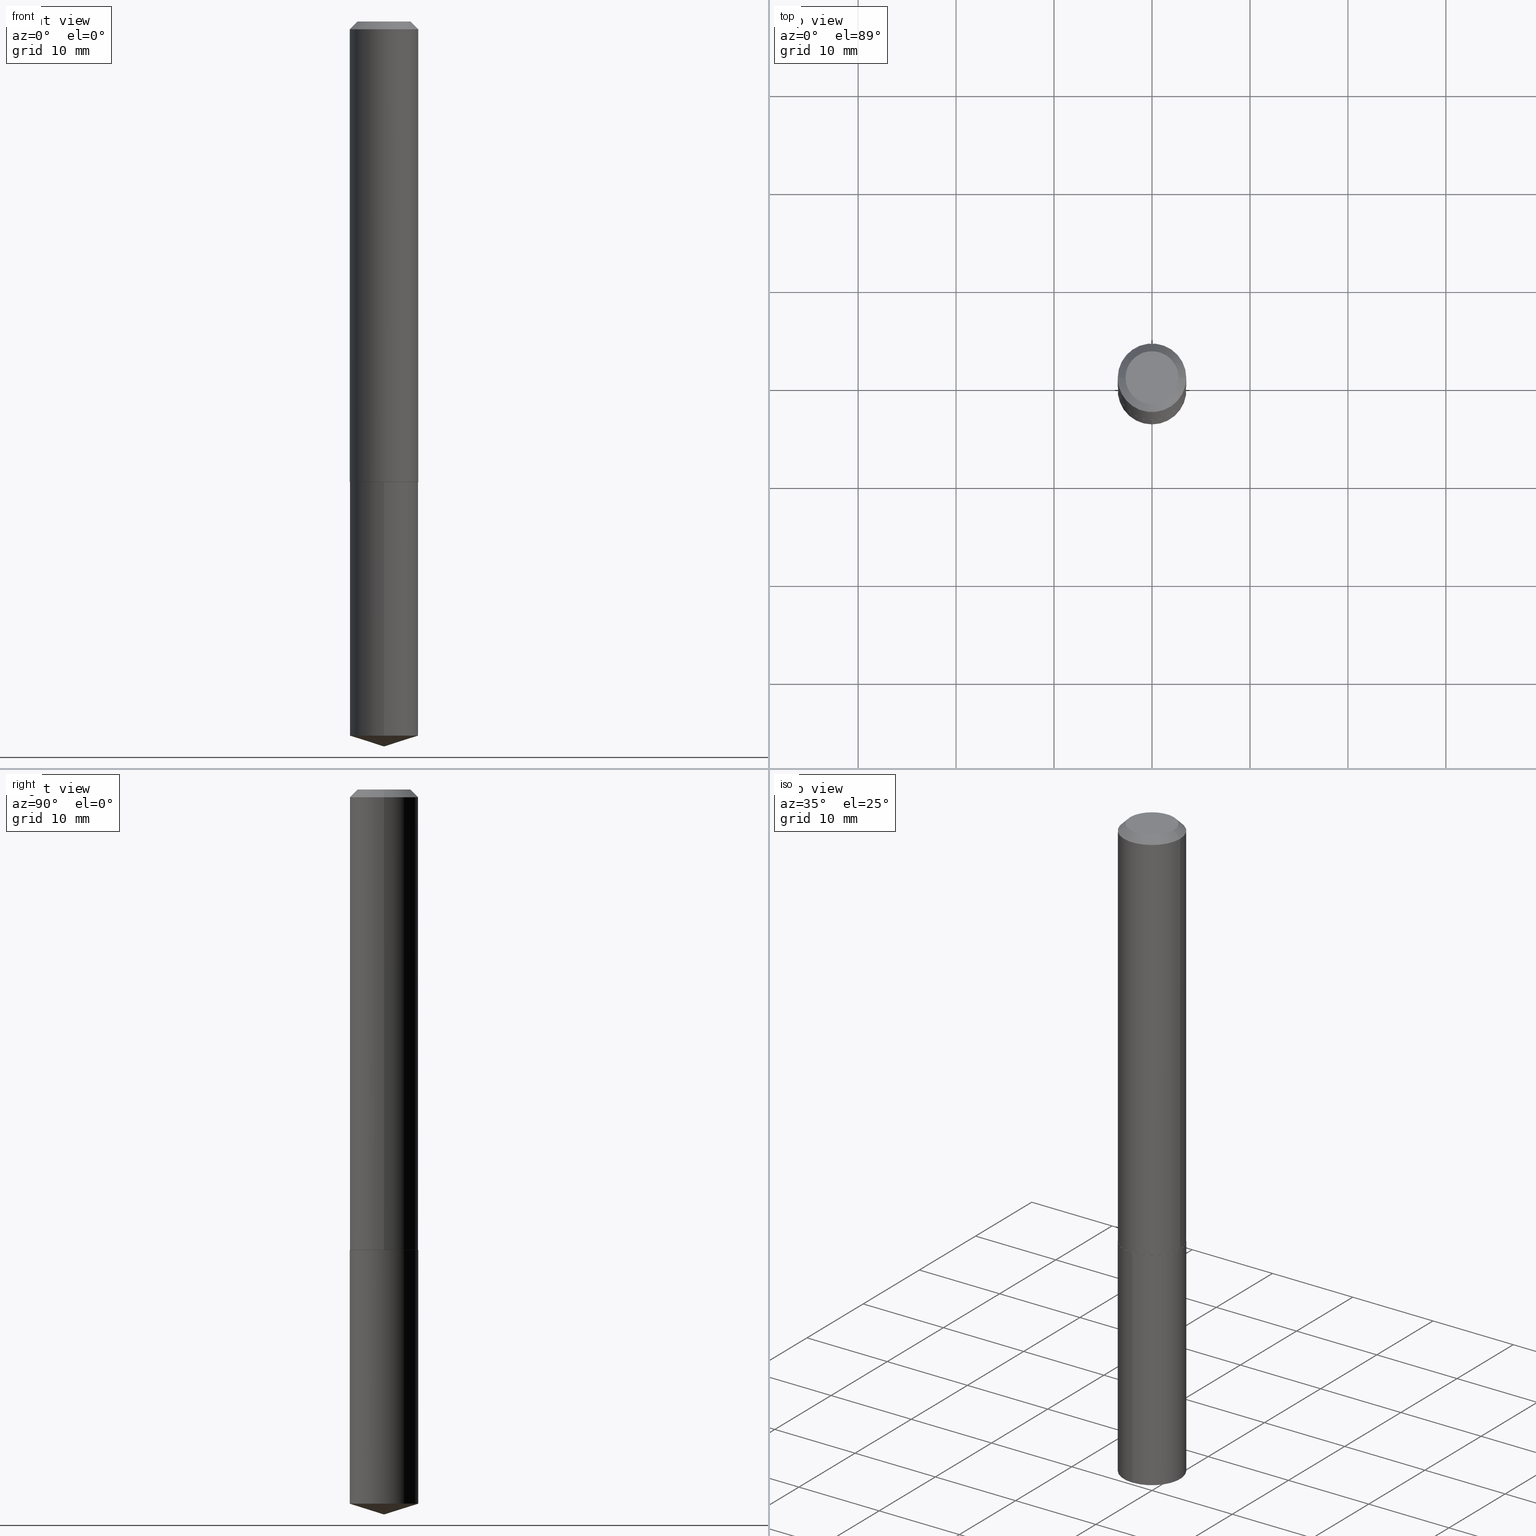
[diagram: canonical four-view strip — front | top / right | iso, engineering-drawing reading convention]
A machine part, canonical four-view strip (front | top / right | iso — engineering-drawing reading convention). The complete STEP part file that produces these views, byte-faithful:
ISO-10303-21;
HEADER;
FILE_DESCRIPTION (( 'STEP AP203' ),
    '1' );
FILE_NAME ('62143.STEP',
    '2024-04-23T06:39:51',
    ( '' ),
    ( '' ),
    'SwSTEP 2.0',
    'SolidWorks 2023',
    '' );
FILE_SCHEMA (( 'CONFIG_CONTROL_DESIGN' ));
ENDSEC;

DATA;
#1 = LINE ( 'NONE', #130, #357 ) ;
#2 = APPROVAL ( #200, 'UNSPECIFIED' ) ;
#3 = EDGE_CURVE ( 'NONE', #278, #332, #58, .T. ) ;
#4 = APPLICATION_PROTOCOL_DEFINITION ( 'international standard', 'config_control_design', 1994, #105 ) ;
#5 = FACE_OUTER_BOUND ( 'NONE', #305, .T. ) ;
#6 = CARTESIAN_POINT ( 'NONE',  ( -8.915002560210652443E-28, 1.272930333936979442E-13, 36.45667874015747856 ) ) ;
#7 = ADVANCED_FACE ( 'NONE', ( #372 ), #34, .F. ) ;
#8 = ORIENTED_EDGE ( 'NONE', *, *, #257, .T. ) ;
#9 = VECTOR ( 'NONE', #40, 39.37007874015748143 ) ;
#10 = DIRECTION ( 'NONE',  ( -2.445373653169523645E-29, 3.491617603377276597E-15, 1.000000000000000000 ) ) ;
#11 = DIRECTION ( 'NONE',  ( 6.776566513254266815E-15, 0.9537169507482301523, 0.3007057995042627385 ) ) ;
#12 = CC_DESIGN_DATE_AND_TIME_ASSIGNMENT ( #21, #45, ( #73 ) ) ;
#13 = VERTEX_POINT ( 'NONE', #101 ) ;
#14 = CARTESIAN_POINT ( 'NONE',  ( -0.1378000000000002279, -5.479763438848515411E-15, -1.849900000000000100 ) ) ;
#15 = DIRECTION ( 'NONE',  ( 1.000000000000000000, -6.982962677686269077E-15, 0.000000000000000000 ) ) ;
#16 = CARTESIAN_POINT ( 'NONE',  ( 4.525095478964976833E-29, -6.460637069395356787E-15, -1.850400000000000045 ) ) ;
#17 = DATE_AND_TIME ( #384, #360 ) ;
#18 = DIRECTION ( 'NONE',  ( -6.982962677686266711E-15, -1.000000000000000000, 3.500519750498647634E-15 ) ) ;
#19 = APPROVAL_DATE_TIME ( #80, #2 ) ;
#20 = CARTESIAN_POINT ( 'NONE',  ( -0.1378000000000001446, 9.791278898774190835E-16, -6.778292554371267040E-30 ) ) ;
#21 = DATE_AND_TIME ( #118, #238 ) ;
#22 = CONICAL_SURFACE ( 'NONE', #131, 0.1378000000000000058, 0.7853981633974449483 ) ;
#23 = DIMENSIONAL_EXPONENTS ( 1.000000000000000000, 0.000000000000000000, 0.000000000000000000, 0.000000000000000000, 0.000000000000000000, 0.000000000000000000, 0.000000000000000000 ) ;
#24 = EDGE_CURVE ( 'NONE', #277, #285, #135, .T. ) ;
#25 = CIRCLE ( 'NONE', #390, 0.1065500000000000197 ) ;
#26 = ORIENTED_EDGE ( 'NONE', *, *, #3, .T. ) ;
#27 = VERTEX_POINT ( 'NONE', #224 ) ;
#28 = CARTESIAN_POINT ( 'NONE',  ( 9.791278898774632598E-16, 0.1377999999999935665, -1.850400000000000489 ) ) ;
#29 = AXIS2_PLACEMENT_3D ( 'NONE', #70, #353, #175 ) ;
#30 = EDGE_CURVE ( 'NONE', #13, #308, #261, .T. ) ;
#31 = DIRECTION ( 'NONE',  ( -2.445468806185136597E-29, 3.491481338843145583E-15, 1.000000000000000000 ) ) ;
#32 = EDGE_LOOP ( 'NONE', ( #81, #274, #366, #388 ) ) ;
#33 = LINE ( 'NONE', #287, #60 ) ;
#34 = PLANE ( 'NONE',  #158 ) ;
#35 = CARTESIAN_POINT ( 'NONE',  ( -0.1378000000000000058, -2.304872170404972320E-15, -0.03125000000000020123 ) ) ;
#36 = ORIENTED_EDGE ( 'NONE', *, *, #299, .T. ) ;
#37 = CARTESIAN_POINT ( 'NONE',  ( 0.1378000000000000058, -1.054485415931766154E-15, -0.03125000000000020123 ) ) ;
#38 = CARTESIAN_POINT ( 'NONE',  ( 0.1065500000000000197, -8.927357387971616206E-16, 4.837354856689280991E-19 ) ) ;
#39 = CARTESIAN_POINT ( 'NONE',  ( -9.622522569851223147E-16, -0.1378000000000064729, -1.850399999999999379 ) ) ;
#40 = DIRECTION ( 'NONE',  ( -2.445468806185136877E-29, 3.491481338843145188E-15, 1.000000000000000000 ) ) ;
#41 = CC_DESIGN_DATE_AND_TIME_ASSIGNMENT ( #329, #297, ( #53 ) ) ;
#42 = PRODUCT_DEFINITION_SHAPE ( 'NONE', 'NONE',  #73 ) ;
#43 = AXIS2_PLACEMENT_3D ( 'NONE', #44, #378, #18 ) ;
#44 = CARTESIAN_POINT ( 'NONE',  ( -8.915002560210652443E-28, 1.272930333936979442E-13, 36.45667874015747856 ) ) ;
#45 = DATE_TIME_ROLE ( 'creation_date' ) ;
#46 = DIRECTION ( 'NONE',  ( 2.445468806185136597E-29, -3.491481338843145583E-15, -1.000000000000000000 ) ) ;
#47 = APPROVAL_ROLE ( '' ) ;
#48 = CIRCLE ( 'NONE', #255, 0.1378000000000002279 ) ;
#49 = ORIENTED_EDGE ( 'NONE', *, *, #338, .T. ) ;
#50 = ORIENTED_EDGE ( 'NONE', *, *, #162, .F. ) ;
#51 = ORIENTED_EDGE ( 'NONE', *, *, #94, .T. ) ;
#52 = AXIS2_PLACEMENT_3D ( 'NONE', #217, #56, #186 ) ;
#53 = SECURITY_CLASSIFICATION ( '', '', #77 ) ;
#54 = ORIENTED_EDGE ( 'NONE', *, *, #194, .F. ) ;
#55 = ORIENTED_EDGE ( 'NONE', *, *, #338, .F. ) ;
#56 = DIRECTION ( 'NONE',  ( -2.445468806185136597E-29, 3.491481338843145583E-15, 1.000000000000000000 ) ) ;
#57 =( CONVERSION_BASED_UNIT ( 'INCH', #340 ) LENGTH_UNIT ( ) NAMED_UNIT ( #23 ) );
#58 = LINE ( 'NONE', #163, #66 ) ;
#59 = CONICAL_SURFACE ( 'NONE', #228, 0.1378000000000000058, 0.7853981633974449483 ) ;
#60 = VECTOR ( 'NONE', #191, 39.37007874015748143 ) ;
#61 = DIRECTION ( 'NONE',  ( 1.000000000000000000, -6.982962677686265922E-15, 4.876176775795935232E-29 ) ) ;
#62 = CARTESIAN_POINT ( 'NONE',  ( 7.642090019328600035E-31, -1.091087918388489897E-16, -0.03125000000000020123 ) ) ;
#63 = DIRECTION ( 'NONE',  ( 0.7071067811863543939, -2.468850131080234027E-15, 0.7071067811867406405 ) ) ;
#64 =( LENGTH_UNIT ( ) NAMED_UNIT ( * ) SI_UNIT ( $, .METRE. ) );
#65 = CARTESIAN_POINT ( 'NONE',  ( 4.525095478964976833E-29, -6.460637069395356787E-15, -1.850400000000000045 ) ) ;
#66 = VECTOR ( 'NONE', #63, 39.37007874015748143 ) ;
#67 = CLOSED_SHELL ( 'NONE', ( #267, #205, #314, #136, #7 ) ) ;
#68 = AXIS2_PLACEMENT_3D ( 'NONE', #171, #290, #139 ) ;
#69 = CARTESIAN_POINT ( 'NONE',  ( -5.914800203170931988E-48, 8.444767105646539499E-34, 2.418677428316027436E-19 ) ) ;
#70 = CARTESIAN_POINT ( 'NONE',  ( 4.525095478964976833E-29, -6.460637069395356787E-15, -1.850400000000000045 ) ) ;
#71 = APPROVAL_DATE_TIME ( #17, #271 ) ;
#72 = DIRECTION ( 'NONE',  ( -2.445468806185136597E-29, 3.491481338843145583E-15, 1.000000000000000000 ) ) ;
#73 = PRODUCT_DEFINITION ( 'UNKNOWN', '', #117, #87 ) ;
#74 = DIRECTION ( 'NONE',  ( -6.982962677686265922E-15, -1.000000000000000000, 3.964946289788480896E-15 ) ) ;
#75 = EDGE_CURVE ( 'NONE', #385, #331, #367, .T. ) ;
#76 = CIRCLE ( 'NONE', #302, 0.1378000000000000058 ) ;
#77 = SECURITY_CLASSIFICATION_LEVEL ( 'unclassified' ) ;
#78 = LOCAL_TIME ( 2, 39, 51.00000000000000000, #178 ) ;
#79 = CARTESIAN_POINT ( 'NONE',  ( 0.000000000000000000, 0.000000000000000000, 0.000000000000000000 ) ) ;
#80 = DATE_AND_TIME ( #206, #78 ) ;
#81 = ORIENTED_EDGE ( 'NONE', *, *, #264, .T. ) ;
#82 = CALENDAR_DATE ( 2024, 23, 4 ) ;
#83 = EDGE_CURVE ( 'NONE', #13, #335, #126, .T. ) ;
#84 = CIRCLE ( 'NONE', #68, 0.1373000000000006160 ) ;
#85 = ORIENTED_EDGE ( 'NONE', *, *, #75, .T. ) ;
#86 = ORIENTED_EDGE ( 'NONE', *, *, #241, .T. ) ;
#87 = DESIGN_CONTEXT ( 'detailed design', #154, 'design' ) ;
#88 = EDGE_CURVE ( 'NONE', #248, #27, #292, .T. ) ;
#89 = ORIENTED_EDGE ( 'NONE', *, *, #226, .F. ) ;
#90 = MANIFOLD_SOLID_BREP ( 'Body-Move/Copy2[2]', #323 ) ;
#91 = AXIS2_PLACEMENT_3D ( 'NONE', #65, #169, #341 ) ;
#92 = LOCAL_TIME ( 2, 39, 51.00000000000000000, #231 ) ;
#93 = ORIENTED_EDGE ( 'NONE', *, *, #30, .F. ) ;
#94 = EDGE_CURVE ( 'NONE', #385, #277, #187, .T. ) ;
#95 = CYLINDRICAL_SURFACE ( 'NONE', #91, 0.1378000000000000058 ) ;
#96 = DIRECTION ( 'NONE',  ( -2.445468806185136597E-29, 3.491481338843145583E-15, 1.000000000000000000 ) ) ;
#97 = DIRECTION ( 'NONE',  ( -0.7071067811865451302, 2.468850131082231817E-15, -0.7071067811865499042 ) ) ;
#98 = VECTOR ( 'NONE', #97, 39.37007874015748143 ) ;
#99 = ADVANCED_FACE ( 'NONE', ( #5 ), #22, .T. ) ;
#100 = DIRECTION ( 'NONE',  ( -2.445373653169523645E-29, 3.491617603377276597E-15, 1.000000000000000000 ) ) ;
#101 = CARTESIAN_POINT ( 'NONE',  ( 7.124351601144090125E-29, -1.017247872567935934E-14, -2.913400000000000212 ) ) ;
#102 = APPLICATION_PROTOCOL_DEFINITION ( 'international standard', 'config_control_design', 1994, #154 ) ;
#103 = DIRECTION ( 'NONE',  ( 1.000000000000000000, -6.982962677686269077E-15, 0.000000000000000000 ) ) ;
#104 = PERSON_AND_ORGANIZATION ( #296, #179 ) ;
#105 = APPLICATION_CONTEXT ( 'configuration controlled 3d designs of mechanical parts and assemblies' ) ;
#106 = CARTESIAN_POINT ( 'NONE',  ( 7.018280654488695032E-29, -1.002052217572859290E-14, -2.869951826892477520 ) ) ;
#107 = CIRCLE ( 'NONE', #350, 0.1378000000000000058 ) ;
#108 = APPROVAL_PERSON_ORGANIZATION ( #104, #291, #326 ) ;
#109 = DIRECTION ( 'NONE',  ( -6.982962677686265922E-15, -1.000000000000000000, 3.964946289788480896E-15 ) ) ;
#110 = CC_DESIGN_PERSON_AND_ORGANIZATION_ASSIGNMENT ( #129, #254, ( #321 ) ) ;
#111 = DIRECTION ( 'NONE',  ( -2.445468806185136597E-29, 3.491481338843145583E-15, 1.000000000000000000 ) ) ;
#112 = CARTESIAN_POINT ( 'NONE',  ( -1.182960040634186398E-47, 1.688953421129307900E-33, 4.837354856632054872E-19 ) ) ;
#113 = COORDINATED_UNIVERSAL_TIME_OFFSET ( 5, 0, .BEHIND. ) ;
#114 = FACE_OUTER_BOUND ( 'NONE', #212, .T. ) ;
#115 = EDGE_CURVE ( 'NONE', #386, #371, #1, .T. ) ;
#116 = SHAPE_DEFINITION_REPRESENTATION ( #42, #137 ) ;
#117 = PRODUCT_DEFINITION_FORMATION_WITH_SPECIFIED_SOURCE ( 'ANY', '', #321, .NOT_KNOWN. ) ;
#118 = CALENDAR_DATE ( 2024, 23, 4 ) ;
#119 = ORIENTED_EDGE ( 'NONE', *, *, #115, .T. ) ;
#120 = EDGE_CURVE ( 'NONE', #386, #278, #151, .T. ) ;
#121 = EDGE_LOOP ( 'NONE', ( #148, #363, #150, #49 ) ) ;
#122 = EDGE_CURVE ( 'NONE', #371, #332, #348, .T. ) ;
#123 = ORIENTED_EDGE ( 'NONE', *, *, #94, .F. ) ;
#124 = ORIENTED_EDGE ( 'NONE', *, *, #3, .F. ) ;
#125 = EDGE_LOOP ( 'NONE', ( #93, #337, #247 ) ) ;
#126 = LINE ( 'NONE', #345, #140 ) ;
#127 = CARTESIAN_POINT ( 'NONE',  ( 4.525095478964976833E-29, -6.460637069395356787E-15, -1.850400000000000045 ) ) ;
#128 = CARTESIAN_POINT ( 'NONE',  ( 4.523872744561884592E-29, -6.458891328725935284E-15, -1.849900000000000100 ) ) ;
#129 = PERSON_AND_ORGANIZATION ( #296, #179 ) ;
#130 = CARTESIAN_POINT ( 'NONE',  ( -0.1378000000000002279, -5.479763438848515411E-15, -1.849900000000000100 ) ) ;
#131 = AXIS2_PLACEMENT_3D ( 'NONE', #62, #313, #259 ) ;
#132 = FACE_OUTER_BOUND ( 'NONE', #153, .T. ) ;
#133 = CARTESIAN_POINT ( 'NONE',  ( -1.182960040634186398E-47, 1.688953421129307900E-33, 4.837354856632054872E-19 ) ) ;
#134 = DIRECTION ( 'NONE',  ( 1.000000000000000000, 0.000000000000000000, 0.000000000000000000 ) ) ;
#135 = LINE ( 'NONE', #283, #98 ) ;
#136 = ADVANCED_FACE ( 'NONE', ( #225 ), #95, .T. ) ;
#137 = ADVANCED_BREP_SHAPE_REPRESENTATION ( '62143', ( #230, #90, #147 ), #167 ) ;
#138 = CARTESIAN_POINT ( 'NONE',  ( 0.1378000000000000058, -1.071361048824016578E-15, -0.03125000000000020123 ) ) ;
#139 = DIRECTION ( 'NONE',  ( 1.000000000000000000, -6.982962677686267499E-15, 0.000000000000000000 ) ) ;
#140 = VECTOR ( 'NONE', #11, 39.37007874015748854 ) ;
#141 = CC_DESIGN_APPROVAL ( #291, ( #73 ) ) ;
#142 = CARTESIAN_POINT ( 'NONE',  ( 7.018280654488695032E-29, -1.002052217572859290E-14, -2.869951826892477520 ) ) ;
#143 = DIRECTION ( 'NONE',  ( 1.000000000000000000, -6.982962677686267499E-15, 0.000000000000000000 ) ) ;
#144 = CARTESIAN_POINT ( 'NONE',  ( -9.622522569851223147E-16, -0.1378000000000064729, -1.850399999999999379 ) ) ;
#145 = CIRCLE ( 'NONE', #364, 0.1378000000000000058 ) ;
#146 = PERSON_AND_ORGANIZATION ( #296, #179 ) ;
#147 = AXIS2_PLACEMENT_3D ( 'NONE', #368, #312, #134 ) ;
#148 = ORIENTED_EDGE ( 'NONE', *, *, #75, .F. ) ;
#149 = ADVANCED_FACE ( 'NONE', ( #190 ), #316, .T. ) ;
#150 = ORIENTED_EDGE ( 'NONE', *, *, #24, .T. ) ;
#151 = CIRCLE ( 'NONE', #237, 0.1373000000000006160 ) ;
#152 = CC_DESIGN_APPROVAL ( #271, ( #117 ) ) ;
#153 = EDGE_LOOP ( 'NONE', ( #245, #361, #185 ) ) ;
#154 = APPLICATION_CONTEXT ( 'configuration controlled 3d designs of mechanical parts and assemblies' ) ;
#155 = CC_DESIGN_PERSON_AND_ORGANIZATION_ASSIGNMENT ( #209, #328, ( #53 ) ) ;
#156 = ORIENTED_EDGE ( 'NONE', *, *, #88, .F. ) ;
#157 = EDGE_LOOP ( 'NONE', ( #387, #307, #156, #89 ) ) ;
#158 = AXIS2_PLACEMENT_3D ( 'NONE', #195, #318, #252 ) ;
#159 = DIRECTION ( 'NONE',  ( -2.445373653169523925E-29, 3.491617603377276597E-15, 1.000000000000000000 ) ) ;
#160 = ORIENTED_EDGE ( 'NONE', *, *, #370, .T. ) ;
#161 = CC_DESIGN_PERSON_AND_ORGANIZATION_ASSIGNMENT ( #352, #176, ( #117 ) ) ;
#162 = EDGE_CURVE ( 'NONE', #335, #27, #309, .T. ) ;
#163 = CARTESIAN_POINT ( 'NONE',  ( 0.1378000000000002279, -7.421143585711104338E-15, -1.849900000000000100 ) ) ;
#164 =( NAMED_UNIT ( * ) SI_UNIT ( $, .STERADIAN. ) SOLID_ANGLE_UNIT ( ) );
#165 = DIRECTION ( 'NONE',  ( 0.7071067811865451302, -7.319954787623248157E-15, -0.7071067811865499042 ) ) ;
#166 = CONICAL_SURFACE ( 'NONE', #280, 124.8659371009170940, 1.265363707695896345 ) ;
#167 =( GEOMETRIC_REPRESENTATION_CONTEXT ( 3 ) GLOBAL_UNCERTAINTY_ASSIGNED_CONTEXT ( ( #246 ) ) GLOBAL_UNIT_ASSIGNED_CONTEXT ( ( #57, #168, #164 ) ) REPRESENTATION_CONTEXT ( 'NONE', 'WORKASPACE' ) );
#168 =( NAMED_UNIT ( * ) PLANE_ANGLE_UNIT ( ) SI_UNIT ( $, .RADIAN. ) );
#169 = DIRECTION ( 'NONE',  ( -2.445373653169523645E-29, 3.491617603377276597E-15, 1.000000000000000000 ) ) ;
#170 = DIRECTION ( 'NONE',  ( -6.982962677686266711E-15, -1.000000000000000000, 3.500519750498647634E-15 ) ) ;
#171 = CARTESIAN_POINT ( 'NONE',  ( 4.525095478964976833E-29, -6.460637069395356787E-15, -1.850400000000000045 ) ) ;
#172 = DIRECTION ( 'NONE',  ( -2.445373653169523645E-29, 3.491617603377276597E-15, 1.000000000000000000 ) ) ;
#173 = VECTOR ( 'NONE', #165, 39.37007874015748143 ) ;
#174 = CALENDAR_DATE ( 2024, 23, 4 ) ;
#175 = DIRECTION ( 'NONE',  ( 1.000000000000000000, -6.982962677686265922E-15, 4.876176775795935793E-29 ) ) ;
#176 = PERSON_AND_ORGANIZATION_ROLE ( 'creator' ) ;
#177 = FACE_OUTER_BOUND ( 'NONE', #121, .T. ) ;
#178 = COORDINATED_UNIVERSAL_TIME_OFFSET ( 5, 0, .BEHIND. ) ;
#179 = ORGANIZATION ( 'UNSPECIFIED', 'UNSPECIFIED', '' ) ;
#180 = ORIENTED_EDGE ( 'NONE', *, *, #299, .F. ) ;
#181 = EDGE_LOOP ( 'NONE', ( #243, #250, #26, #216 ) ) ;
#182 = EDGE_LOOP ( 'NONE', ( #8, #51 ) ) ;
#183 = AXIS2_PLACEMENT_3D ( 'NONE', #133, #347, #288 ) ;
#184 = ORIENTED_EDGE ( 'NONE', *, *, #251, .T. ) ;
#185 = ORIENTED_EDGE ( 'NONE', *, *, #241, .F. ) ;
#186 = DIRECTION ( 'NONE',  ( 1.000000000000000000, -6.982962677686269077E-15, 0.000000000000000000 ) ) ;
#187 = CIRCLE ( 'NONE', #183, 0.1065500000000000197 ) ;
#188 = CARTESIAN_POINT ( 'NONE',  ( 7.124351601144090125E-29, -1.017247872567935934E-14, -2.913400000000000212 ) ) ;
#189 = DIRECTION ( 'NONE',  ( -1.000000000000000000, 6.982962677686265922E-15, -4.876176775795935793E-29 ) ) ;
#190 = FACE_OUTER_BOUND ( 'NONE', #181, .T. ) ;
#191 = DIRECTION ( 'NONE',  ( -2.445468806185136877E-29, 3.491481338843145188E-15, 1.000000000000000000 ) ) ;
#192 = CARTESIAN_POINT ( 'NONE',  ( 4.525095478964976833E-29, -6.460637069395356787E-15, -1.850400000000000045 ) ) ;
#193 = ADVANCED_FACE ( 'NONE', ( #281 ), #199, .T. ) ;
#194 = EDGE_CURVE ( 'NONE', #371, #285, #383, .T. ) ;
#195 = CARTESIAN_POINT ( 'NONE',  ( 4.525095478964976833E-29, -6.460637069395356787E-15, -1.850400000000000045 ) ) ;
#196 = CIRCLE ( 'NONE', #203, 0.1378000000000000058 ) ;
#197 = CC_DESIGN_SECURITY_CLASSIFICATION ( #53, ( #117 ) ) ;
#198 = CARTESIAN_POINT ( 'NONE',  ( 0.1378000000000002279, -7.421143585711104338E-15, -1.849900000000000100 ) ) ;
#199 = CYLINDRICAL_SURFACE ( 'NONE', #342, 0.1378000000000001446 ) ;
#200 = APPROVAL_STATUS ( 'not_yet_approved' ) ;
#201 = DIRECTION ( 'NONE',  ( 1.000000000000000000, -6.982962677686269077E-15, 0.000000000000000000 ) ) ;
#202 = CARTESIAN_POINT ( 'NONE',  ( -0.1065500000000000197, 7.985890692268953051E-16, 4.837354856578115352E-19 ) ) ;
#203 = AXIS2_PLACEMENT_3D ( 'NONE', #106, #320, #236 ) ;
#204 = CC_DESIGN_APPROVAL ( #2, ( #53 ) ) ;
#205 = ADVANCED_FACE ( 'NONE', ( #327 ), #211, .T. ) ;
#206 = CALENDAR_DATE ( 2024, 23, 4 ) ;
#207 = DIRECTION ( 'NONE',  ( -2.445468806185136597E-29, 3.491481338843145583E-15, 1.000000000000000000 ) ) ;
#208 = APPROVAL_ROLE ( '' ) ;
#209 = PERSON_AND_ORGANIZATION ( #296, #179 ) ;
#210 = ORIENTED_EDGE ( 'NONE', *, *, #88, .T. ) ;
#211 = CONICAL_SURFACE ( 'NONE', #43, 124.8659371009170940, 1.265363707695896345 ) ;
#212 = EDGE_LOOP ( 'NONE', ( #184, #119, #303, #124 ) ) ;
#213 = ORIENTED_EDGE ( 'NONE', *, *, #122, .T. ) ;
#214 = ADVANCED_FACE ( 'NONE', ( #177 ), #59, .T. ) ;
#215 = ORIENTED_EDGE ( 'NONE', *, *, #242, .T. ) ;
#216 = ORIENTED_EDGE ( 'NONE', *, *, #122, .F. ) ;
#217 = CARTESIAN_POINT ( 'NONE',  ( 4.523872744561884592E-29, -6.458891328725935284E-15, -1.849900000000000100 ) ) ;
#218 = ADVANCED_FACE ( 'NONE', ( #269 ), #233, .F. ) ;
#219 = ADVANCED_FACE ( 'NONE', ( #114 ), #262, .T. ) ;
#220 = DIRECTION ( 'NONE',  ( -2.445468806185136597E-29, 3.491481338843145583E-15, 1.000000000000000000 ) ) ;
#221 = CARTESIAN_POINT ( 'NONE',  ( -9.622522569850970711E-16, -0.1378000000000100256, -2.869951826892476632 ) ) ;
#222 = DIRECTION ( 'NONE',  ( -6.659769872151639977E-15, -0.9537169507482280428, 0.3007057995042693443 ) ) ;
#223 = CARTESIAN_POINT ( 'NONE',  ( 0.000000000000000000, 0.000000000000000000, 0.000000000000000000 ) ) ;
#224 = CARTESIAN_POINT ( 'NONE',  ( 9.791278898774887005E-16, 0.1377999999999935665, -1.850400000000000489 ) ) ;
#225 = FACE_OUTER_BOUND ( 'NONE', #256, .T. ) ;
#226 = EDGE_CURVE ( 'NONE', #308, #248, #381, .T. ) ;
#227 = APPROVAL_STATUS ( 'not_yet_approved' ) ;
#228 = AXIS2_PLACEMENT_3D ( 'NONE', #379, #46, #298 ) ;
#229 = DIRECTION ( 'NONE',  ( -2.445373653169523925E-29, 3.491617603377276597E-15, 1.000000000000000000 ) ) ;
#230 = MANIFOLD_SOLID_BREP ( 'Body-Move/Copy2[1]', #67 ) ;
#231 = COORDINATED_UNIVERSAL_TIME_OFFSET ( 5, 0, .BEHIND. ) ;
#232 = DIRECTION ( 'NONE',  ( 1.000000000000000000, -6.982962677686266711E-15, 4.876156115951996795E-29 ) ) ;
#233 = PLANE ( 'NONE',  #29 ) ;
#234 = EDGE_CURVE ( 'NONE', #308, #335, #145, .T. ) ;
#235 = PERSON_AND_ORGANIZATION ( #296, #179 ) ;
#236 = DIRECTION ( 'NONE',  ( -6.982962677686265922E-15, -1.000000000000000000, 3.964946289788480896E-15 ) ) ;
#237 = AXIS2_PLACEMENT_3D ( 'NONE', #373, #96, #339 ) ;
#238 = LOCAL_TIME ( 2, 39, 51.00000000000000000, #113 ) ;
#239 = PERSON_AND_ORGANIZATION ( #296, #179 ) ;
#240 = DATE_AND_TIME ( #82, #317 ) ;
#241 = EDGE_CURVE ( 'NONE', #335, #308, #196, .T. ) ;
#242 = EDGE_CURVE ( 'NONE', #331, #285, #249, .T. ) ;
#243 = ORIENTED_EDGE ( 'NONE', *, *, #115, .F. ) ;
#244 = AXIS2_PLACEMENT_3D ( 'NONE', #223, #31, #61 ) ;
#245 = ORIENTED_EDGE ( 'NONE', *, *, #83, .F. ) ;
#246 = UNCERTAINTY_MEASURE_WITH_UNIT (LENGTH_MEASURE( 1.000000000000000082E-05 ), #57, 'distance_accuracy_value', 'NONE');
#247 = ORIENTED_EDGE ( 'NONE', *, *, #234, .F. ) ;
#248 = VERTEX_POINT ( 'NONE', #39 ) ;
#249 = CIRCLE ( 'NONE', #376, 0.1378000000000000058 ) ;
#250 = ORIENTED_EDGE ( 'NONE', *, *, #120, .T. ) ;
#251 = EDGE_CURVE ( 'NONE', #278, #386, #84, .T. ) ;
#252 = DIRECTION ( 'NONE',  ( 6.982962677686265922E-15, 1.000000000000000000, -3.491617603377276597E-15 ) ) ;
#253 = MECHANICAL_CONTEXT ( 'NONE', #105, 'mechanical' ) ;
#254 = PERSON_AND_ORGANIZATION_ROLE ( 'design_owner' ) ;
#255 = AXIS2_PLACEMENT_3D ( 'NONE', #265, #72, #201 ) ;
#256 = EDGE_LOOP ( 'NONE', ( #50, #86, #275, #180 ) ) ;
#257 = EDGE_CURVE ( 'NONE', #277, #385, #25, .T. ) ;
#258 = CARTESIAN_POINT ( 'NONE',  ( -0.1373000000000006160, -5.482412666022625823E-15, -1.850400000000000045 ) ) ;
#259 = DIRECTION ( 'NONE',  ( -1.000000000000000000, 6.982962677686267499E-15, 0.000000000000000000 ) ) ;
#260 = CARTESIAN_POINT ( 'NONE',  ( 9.791278898774883061E-16, 0.1377999999999899583, -2.869951826892477964 ) ) ;
#261 = LINE ( 'NONE', #188, #306 ) ;
#262 = CONICAL_SURFACE ( 'NONE', #324, 0.1378000000000002279, 0.7853981633971751641 ) ;
#263 = DIRECTION ( 'NONE',  ( 1.000000000000000000, -6.982962677686265922E-15, 4.876176775795935232E-29 ) ) ;
#264 = EDGE_CURVE ( 'NONE', #332, #371, #48, .T. ) ;
#265 = CARTESIAN_POINT ( 'NONE',  ( 4.523872744561884592E-29, -6.458891328725935284E-15, -1.849900000000000100 ) ) ;
#266 = PERSON_AND_ORGANIZATION_ROLE ( 'design_supplier' ) ;
#267 = ADVANCED_FACE ( 'NONE', ( #268 ), #293, .T. ) ;
#268 = FACE_OUTER_BOUND ( 'NONE', #157, .T. ) ;
#269 = FACE_OUTER_BOUND ( 'NONE', #362, .T. ) ;
#270 = AXIS2_PLACEMENT_3D ( 'NONE', #128, #220, #103 ) ;
#271 = APPROVAL ( #294, 'UNSPECIFIED' ) ;
#272 = APPROVAL_PERSON_ORGANIZATION ( #146, #271, #208 ) ;
#273 = APPROVAL_DATE_TIME ( #240, #291 ) ;
#274 = ORIENTED_EDGE ( 'NONE', *, *, #194, .T. ) ;
#275 = ORIENTED_EDGE ( 'NONE', *, *, #226, .T. ) ;
#276 = VECTOR ( 'NONE', #159, 39.37007874015748143 ) ;
#277 = VERTEX_POINT ( 'NONE', #202 ) ;
#278 = VERTEX_POINT ( 'NONE', #325 ) ;
#279 = ORIENTED_EDGE ( 'NONE', *, *, #24, .F. ) ;
#280 = AXIS2_PLACEMENT_3D ( 'NONE', #6, #10, #170 ) ;
#281 = FACE_OUTER_BOUND ( 'NONE', #32, .T. ) ;
#282 = PLANE ( 'NONE',  #336 ) ;
#283 = CARTESIAN_POINT ( 'NONE',  ( -0.1378000000000000058, 8.531434651463186722E-16, -0.03125000000000020123 ) ) ;
#284 = CC_DESIGN_PERSON_AND_ORGANIZATION_ASSIGNMENT ( #356, #266, ( #117 ) ) ;
#285 = VERTEX_POINT ( 'NONE', #35 ) ;
#286 = ORIENTED_EDGE ( 'NONE', *, *, #251, .F. ) ;
#287 = CARTESIAN_POINT ( 'NONE',  ( 0.1378000000000001446, -9.622522569851684631E-16, 6.719371597046805543E-30 ) ) ;
#288 = DIRECTION ( 'NONE',  ( 1.000000000000000000, -6.982962677686266711E-15, 4.876156115951996795E-29 ) ) ;
#289 = CARTESIAN_POINT ( 'NONE',  ( 7.642090019328600035E-31, -1.091087918388489897E-16, -0.03125000000000020123 ) ) ;
#290 = DIRECTION ( 'NONE',  ( -2.445468806185136597E-29, 3.491481338843145583E-15, 1.000000000000000000 ) ) ;
#291 = APPROVAL ( #227, 'UNSPECIFIED' ) ;
#292 = CIRCLE ( 'NONE', #330, 0.1378000000000000058 ) ;
#293 = CYLINDRICAL_SURFACE ( 'NONE', #301, 0.1378000000000000058 ) ;
#294 = APPROVAL_STATUS ( 'not_yet_approved' ) ;
#295 = CARTESIAN_POINT ( 'NONE',  ( 7.642090019328600035E-31, -1.091087918388489897E-16, -0.03125000000000020123 ) ) ;
#296 = PERSON ( 'UNSPECIFIED', 'UNSPECIFIED', 'UNSPECIFIED', ('UNSPECIFIED'), ('UNSPECIFIED'), ('UNSPECIFIED') ) ;
#297 = DATE_TIME_ROLE ( 'classification_date' ) ;
#298 = DIRECTION ( 'NONE',  ( -1.000000000000000000, 6.982962677686267499E-15, 0.000000000000000000 ) ) ;
#299 = EDGE_CURVE ( 'NONE', #27, #248, #76, .T. ) ;
#300 = COORDINATED_UNIVERSAL_TIME_OFFSET ( 5, 0, .BEHIND. ) ;
#301 = AXIS2_PLACEMENT_3D ( 'NONE', #16, #354, #74 ) ;
#302 = AXIS2_PLACEMENT_3D ( 'NONE', #127, #100, #109 ) ;
#303 = ORIENTED_EDGE ( 'NONE', *, *, #264, .F. ) ;
#304 = ORIENTED_EDGE ( 'NONE', *, *, #120, .F. ) ;
#305 = EDGE_LOOP ( 'NONE', ( #123, #85, #215, #279 ) ) ;
#306 = VECTOR ( 'NONE', #222, 39.37007874015748854 ) ;
#307 = ORIENTED_EDGE ( 'NONE', *, *, #162, .T. ) ;
#308 = VERTEX_POINT ( 'NONE', #221 ) ;
#309 = LINE ( 'NONE', #28, #276 ) ;
#310 = VECTOR ( 'NONE', #229, 39.37007874015748143 ) ;
#311 = DIRECTION ( 'NONE',  ( -2.445373653169523645E-29, 3.491617603377276597E-15, 1.000000000000000000 ) ) ;
#312 = DIRECTION ( 'NONE',  ( 0.000000000000000000, 0.000000000000000000, 1.000000000000000000 ) ) ;
#313 = DIRECTION ( 'NONE',  ( 2.445468806185136597E-29, -3.491481338843145583E-15, -1.000000000000000000 ) ) ;
#314 = ADVANCED_FACE ( 'NONE', ( #132 ), #166, .T. ) ;
#315 = DIRECTION ( 'NONE',  ( -6.982962677686265922E-15, -1.000000000000000000, 3.964946289788480896E-15 ) ) ;
#316 = CONICAL_SURFACE ( 'NONE', #52, 0.1378000000000002279, 0.7853981633971751641 ) ;
#317 = LOCAL_TIME ( 2, 39, 51.00000000000000000, #380 ) ;
#318 = DIRECTION ( 'NONE',  ( 2.445373653169523364E-29, -3.491617603377276597E-15, -1.000000000000000000 ) ) ;
#319 = DIRECTION ( 'NONE',  ( 1.000000000000000000, -6.982962677686267499E-15, 0.000000000000000000 ) ) ;
#320 = DIRECTION ( 'NONE',  ( -2.445373653169523645E-29, 3.491617603377276597E-15, 1.000000000000000000 ) ) ;
#321 = PRODUCT ( '62143', '62143', '', ( #253 ) ) ;
#322 = CARTESIAN_POINT ( 'NONE',  ( 4.523872744561884592E-29, -6.458891328725935284E-15, -1.849900000000000100 ) ) ;
#323 = CLOSED_SHELL ( 'NONE', ( #99, #193, #219, #218, #149, #359, #214, #334 ) ) ;
#324 = AXIS2_PLACEMENT_3D ( 'NONE', #322, #351, #15 ) ;
#325 = CARTESIAN_POINT ( 'NONE',  ( 0.1373000000000006160, -7.419397845041685201E-15, -1.850400000000000045 ) ) ;
#326 = APPROVAL_ROLE ( '' ) ;
#327 = FACE_OUTER_BOUND ( 'NONE', #125, .T. ) ;
#328 = PERSON_AND_ORGANIZATION_ROLE ( 'classification_officer' ) ;
#329 = DATE_AND_TIME ( #174, #92 ) ;
#330 = AXIS2_PLACEMENT_3D ( 'NONE', #192, #311, #315 ) ;
#331 = VERTEX_POINT ( 'NONE', #138 ) ;
#332 = VERTEX_POINT ( 'NONE', #198 ) ;
#333 = EDGE_LOOP ( 'NONE', ( #210, #36 ) ) ;
#334 = ADVANCED_FACE ( 'NONE', ( #377 ), #282, .F. ) ;
#335 = VERTEX_POINT ( 'NONE', #260 ) ;
#336 = AXIS2_PLACEMENT_3D ( 'NONE', #69, #349, #189 ) ;
#337 = ORIENTED_EDGE ( 'NONE', *, *, #83, .T. ) ;
#338 = EDGE_CURVE ( 'NONE', #285, #331, #107, .T. ) ;
#339 = DIRECTION ( 'NONE',  ( 1.000000000000000000, -6.982962677686267499E-15, 0.000000000000000000 ) ) ;
#340 = LENGTH_MEASURE_WITH_UNIT ( LENGTH_MEASURE( 0.02539999999999999897 ), #64 );
#341 = DIRECTION ( 'NONE',  ( -6.982962677686265922E-15, -1.000000000000000000, 3.964946289788480896E-15 ) ) ;
#342 = AXIS2_PLACEMENT_3D ( 'NONE', #79, #207, #263 ) ;
#343 = CYLINDRICAL_SURFACE ( 'NONE', #244, 0.1378000000000001446 ) ;
#344 = DIRECTION ( 'NONE',  ( -0.7071067811863543939, 7.493145998869656807E-15, 0.7071067811867406405 ) ) ;
#345 = CARTESIAN_POINT ( 'NONE',  ( 7.124706831296398980E-29, -1.017197443789144451E-14, -2.913400000000000212 ) ) ;
#346 = DIRECTION ( 'NONE',  ( -2.445468806185136597E-29, 3.491481338843145583E-15, 1.000000000000000000 ) ) ;
#347 = DIRECTION ( 'NONE',  ( -2.445468806185136597E-29, 3.491481338843145583E-15, 1.000000000000000000 ) ) ;
#348 = CIRCLE ( 'NONE', #270, 0.1378000000000002279 ) ;
#349 = DIRECTION ( 'NONE',  ( 2.438088387897960049E-29, -3.491481338843145188E-15, -1.000000000000000000 ) ) ;
#350 = AXIS2_PLACEMENT_3D ( 'NONE', #289, #346, #319 ) ;
#351 = DIRECTION ( 'NONE',  ( -2.445468806185136597E-29, 3.491481338843145583E-15, 1.000000000000000000 ) ) ;
#352 = PERSON_AND_ORGANIZATION ( #296, #179 ) ;
#353 = DIRECTION ( 'NONE',  ( -2.438088387897960049E-29, 3.491481338843145188E-15, 1.000000000000000000 ) ) ;
#354 = DIRECTION ( 'NONE',  ( -2.445373653169523645E-29, 3.491617603377276597E-15, 1.000000000000000000 ) ) ;
#355 = CC_DESIGN_PERSON_AND_ORGANIZATION_ASSIGNMENT ( #235, #382, ( #73 ) ) ;
#356 = PERSON_AND_ORGANIZATION ( #296, #179 ) ;
#357 = VECTOR ( 'NONE', #344, 39.37007874015748143 ) ;
#358 = DIRECTION ( 'NONE',  ( -2.445468806185136597E-29, 3.491481338843145583E-15, 1.000000000000000000 ) ) ;
#359 = ADVANCED_FACE ( 'NONE', ( #374 ), #343, .T. ) ;
#360 = LOCAL_TIME ( 2, 39, 51.00000000000000000, #300 ) ;
#361 = ORIENTED_EDGE ( 'NONE', *, *, #30, .T. ) ;
#362 = EDGE_LOOP ( 'NONE', ( #286, #304 ) ) ;
#363 = ORIENTED_EDGE ( 'NONE', *, *, #257, .F. ) ;
#364 = AXIS2_PLACEMENT_3D ( 'NONE', #142, #172, #375 ) ;
#365 = APPROVAL_PERSON_ORGANIZATION ( #239, #2, #47 ) ;
#366 = ORIENTED_EDGE ( 'NONE', *, *, #242, .F. ) ;
#367 = LINE ( 'NONE', #37, #173 ) ;
#368 = CARTESIAN_POINT ( 'NONE',  ( 0.000000000000000000, 0.000000000000000000, 0.000000000000000000 ) ) ;
#369 = PRODUCT_RELATED_PRODUCT_CATEGORY ( 'detail', '', ( #321 ) ) ;
#370 = EDGE_CURVE ( 'NONE', #332, #331, #33, .T. ) ;
#371 = VERTEX_POINT ( 'NONE', #14 ) ;
#372 = FACE_OUTER_BOUND ( 'NONE', #333, .T. ) ;
#373 = CARTESIAN_POINT ( 'NONE',  ( 4.525095478964976833E-29, -6.460637069395356787E-15, -1.850400000000000045 ) ) ;
#374 = FACE_OUTER_BOUND ( 'NONE', #389, .T. ) ;
#375 = DIRECTION ( 'NONE',  ( -6.982962677686265922E-15, -1.000000000000000000, 3.964946289788480896E-15 ) ) ;
#376 = AXIS2_PLACEMENT_3D ( 'NONE', #295, #358, #143 ) ;
#377 = FACE_OUTER_BOUND ( 'NONE', #182, .T. ) ;
#378 = DIRECTION ( 'NONE',  ( -2.445373653169523645E-29, 3.491617603377276597E-15, 1.000000000000000000 ) ) ;
#379 = CARTESIAN_POINT ( 'NONE',  ( 7.642090019328600035E-31, -1.091087918388489897E-16, -0.03125000000000020123 ) ) ;
#380 = COORDINATED_UNIVERSAL_TIME_OFFSET ( 5, 0, .BEHIND. ) ;
#381 = LINE ( 'NONE', #144, #310 ) ;
#382 = PERSON_AND_ORGANIZATION_ROLE ( 'creator' ) ;
#383 = LINE ( 'NONE', #20, #9 ) ;
#384 = CALENDAR_DATE ( 2024, 23, 4 ) ;
#385 = VERTEX_POINT ( 'NONE', #38 ) ;
#386 = VERTEX_POINT ( 'NONE', #258 ) ;
#387 = ORIENTED_EDGE ( 'NONE', *, *, #234, .T. ) ;
#388 = ORIENTED_EDGE ( 'NONE', *, *, #370, .F. ) ;
#389 = EDGE_LOOP ( 'NONE', ( #54, #213, #160, #55 ) ) ;
#390 = AXIS2_PLACEMENT_3D ( 'NONE', #112, #111, #232 ) ;
ENDSEC;
END-ISO-10303-21;
